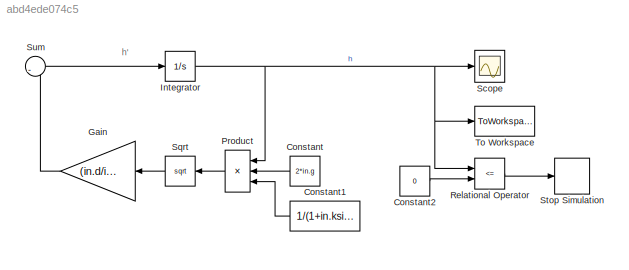
MODEL slx_abd4ede074c5
KIND model
BLOCK [Constant] Constant
  Value = 2*in.g
BLOCK [Constant] Constant1
  Value = 1/(1+in.ksiVal)
  VectorParams1D = off
BLOCK [Constant] Constant2
  Value = 0
BLOCK [Gain] Gain
  Gain = (in.d/in.D)^2
  OutDataTypeStr = Inherit: Inherit via internal rule
  ParamDataTypeStr = Inherit: Inherit via internal rule
  SaturateOnIntegerOverflow = off
BLOCK [Integrator] Integrator
  InitialCondition = param.ic
  Ports = [1, 1]
BLOCK [Product] Product
  InputSameDT = off
  Inputs = 3
  OutDataTypeStr = Inherit: Inherit via internal rule
  Ports = [3, 1]
  RndMeth = Floor
  SaturateOnIntegerOverflow = off
BLOCK [RelationalOperator] Relational Operator
  InputSameDT = off
  Operator = <=
  OutDataTypeStr = boolean
  Ports = [2, 1]
BLOCK [Scope] Scope
  Floating = off
  LimitDataPoints = off
  NumInputPorts = 1
  Ports = [1]
  ShowLegends = off
  TimeRange = 64.93538629774619
  YMin = -1
BLOCK [Sqrt] Sqrt
BLOCK [Stop] Stop Simulation
BLOCK [Sum] Sum
  IconShape = round
  InputSameDT = off
  Inputs = |-
  OutDataTypeStr = Inherit: Inherit via internal rule
  Ports = [1, 1]
  SaturateOnIntegerOverflow = off
BLOCK [ToWorkspace] To Workspace
  FixptAsFi = on
  MaxDataPoints = inf
  Ports = [1]
  SampleTime = -1
  Save2DSignal = 3-D array (concatenate along third dimension)
  SaveFormat = Timeseries
  VariableName = simout
ANNOTATION (root): h'
LINE Constant1:1 -> Product:3
LINE Constant2:1 -> Relational Operator:2
LINE Constant:1 -> Product:2
LINE Gain:1 -> Sum:1
NET Integrator:1 -> Product:1, Relational Operator:1, Scope:1, To Workspace:1
LINE Product:1 -> Sqrt:1
LINE Relational Operator:1 -> Stop Simulation:1
LINE Sqrt:1 -> Gain:1
LINE Sum:1 -> Integrator:1
note: NET lines group one-source signal fan-out (src -> all destinations, sorted); 1:1 wires keep LINE
